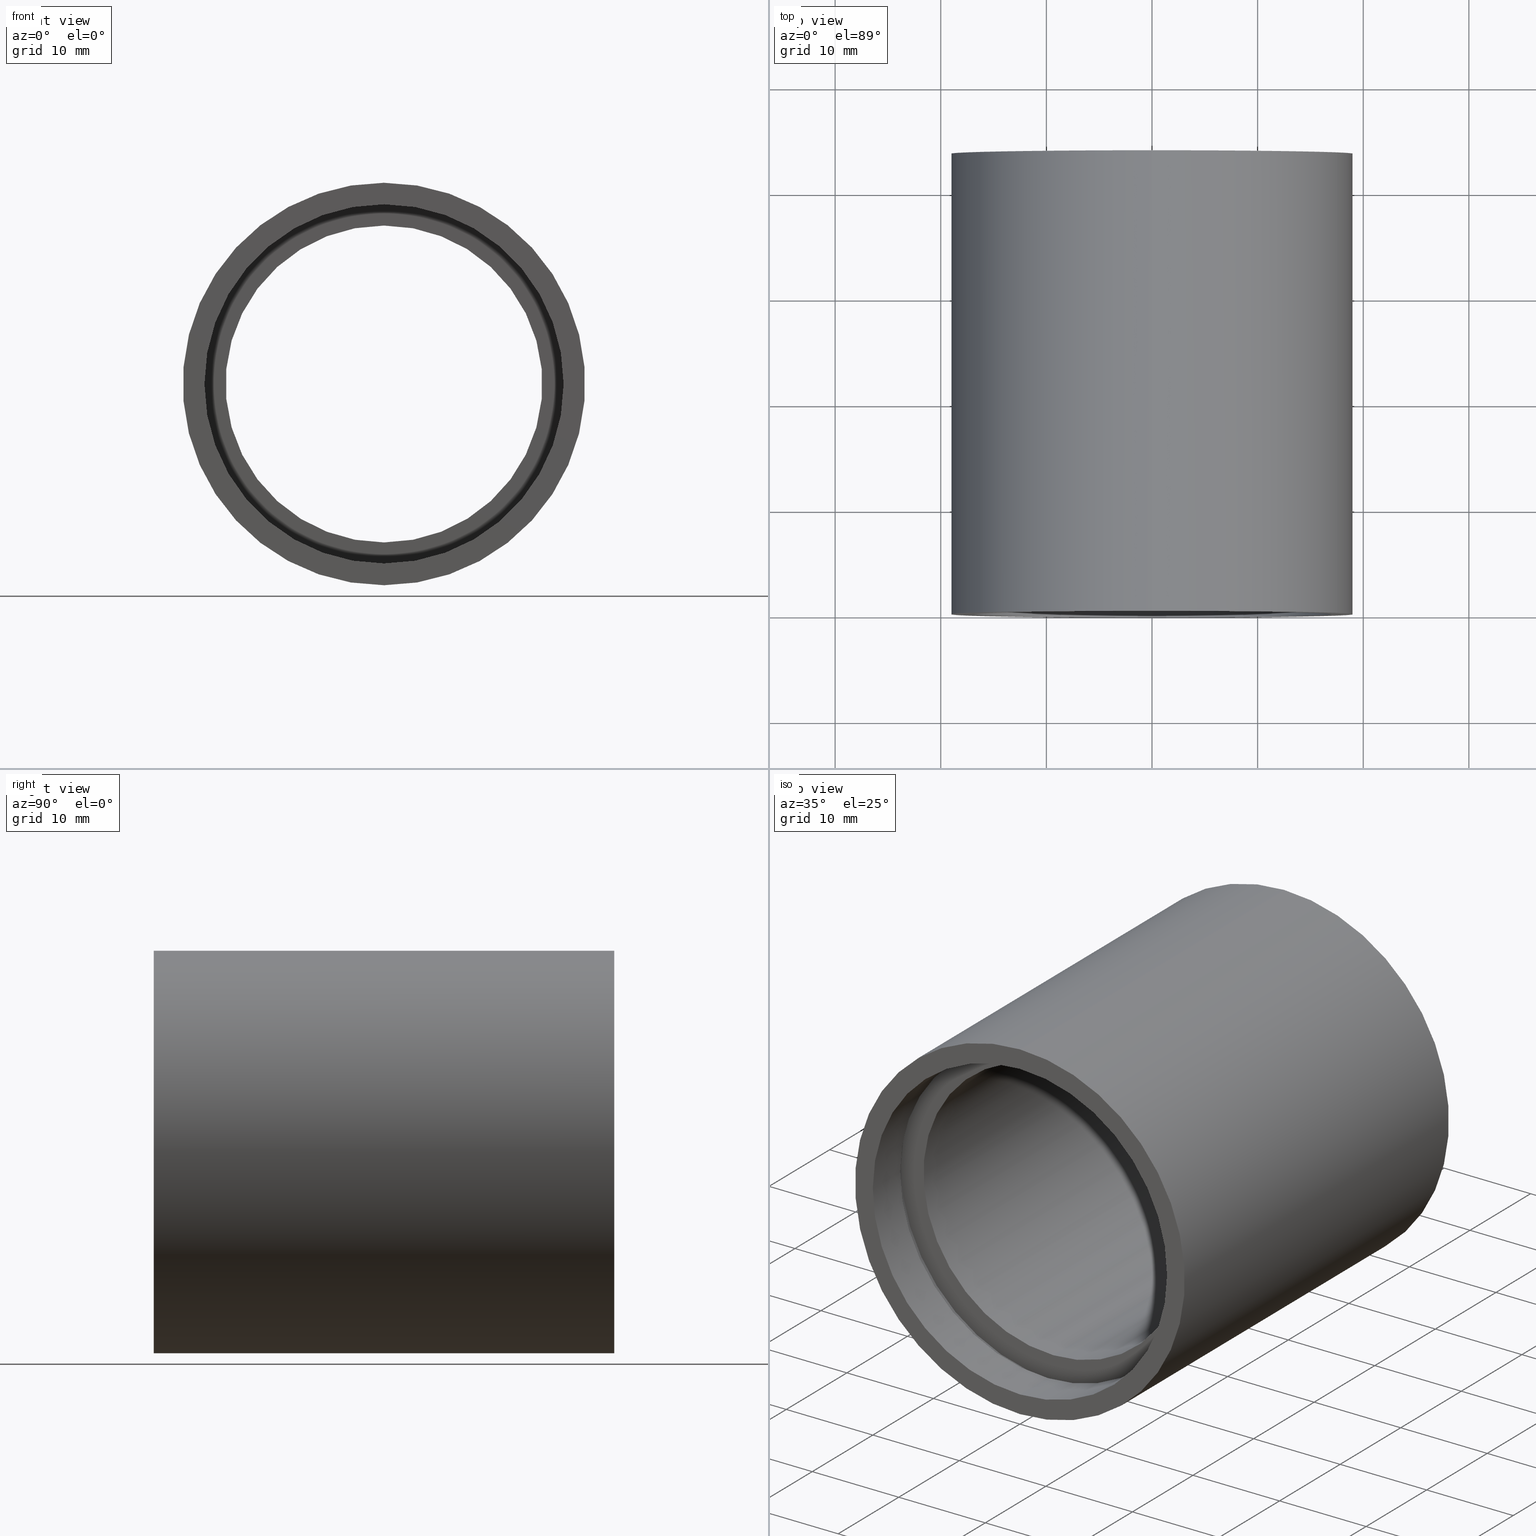
[diagram: canonical four-view strip — front | top / right | iso, engineering-drawing reading convention]
A machine part, canonical four-view strip (front | top / right | iso — engineering-drawing reading convention). The complete STEP part file that produces these views, byte-faithful:
ISO-10303-21;
HEADER;
FILE_DESCRIPTION (( 'STEP AP214' ),
    '1' );
FILE_NAME ('503041.STEP',
    '2019-09-06T03:08:09',
    ( '' ),
    ( '' ),
    'SwSTEP 2.0',
    'SolidWorks 2016',
    '' );
FILE_SCHEMA (( 'AUTOMOTIVE_DESIGN' ));
ENDSEC;

DATA;
#1 = STYLED_ITEM ( 'NONE', ( #238 ), #487 ) ;
#2 = DIRECTION ( 'NONE',  ( -0.0000000000000000000, 1.000000000000000000, -0.0000000000000000000 ) ) ;
#3 = DIRECTION ( 'NONE',  ( -0.0000000000000000000, 1.000000000000000000, -0.0000000000000000000 ) ) ;
#4 = DIRECTION ( 'NONE',  ( 0.0000000000000000000, 0.0000000000000000000, 1.000000000000000000 ) ) ;
#5 = VERTEX_POINT ( 'NONE', #240 ) ;
#6 = DIRECTION ( 'NONE',  ( -0.0000000000000000000, 1.000000000000000000, -0.0000000000000000000 ) ) ;
#7 = CYLINDRICAL_SURFACE ( 'NONE', #385, 17.00000000000002100 ) ;
#8 = ORIENTED_EDGE ( 'NONE', *, *, #362, .F. ) ;
#9 =( LENGTH_UNIT ( ) NAMED_UNIT ( * ) SI_UNIT ( .MILLI., .METRE. ) );
#10 = FILL_AREA_STYLE ('',( #255 ) ) ;
#11 = AXIS2_PLACEMENT_3D ( 'NONE', #63, #13, #381 ) ;
#12 = CARTESIAN_POINT ( 'NONE',  ( 0.0000000000000000000, 43.59999999999998700, 17.00000000000002100 ) ) ;
#13 = DIRECTION ( 'NONE',  ( -0.0000000000000000000, 1.000000000000000000, -0.0000000000000000000 ) ) ;
#14 = ORIENTED_EDGE ( 'NONE', *, *, #227, .T. ) ;
#15 = CARTESIAN_POINT ( 'NONE',  ( 0.0000000000000000000, 161.3761669434274500, 17.00000000000002100 ) ) ;
#16 = PRODUCT_DEFINITION_CONTEXT ( 'detailed design', #198, 'design' ) ;
#17 = DIRECTION ( 'NONE',  ( -0.0000000000000000000, 1.000000000000000000, -0.0000000000000000000 ) ) ;
#18 = EDGE_CURVE ( 'NONE', #469, #5, #409, .T. ) ;
#19 = DIRECTION ( 'NONE',  ( -0.0000000000000000000, 1.000000000000000000, -0.0000000000000000000 ) ) ;
#20 = VECTOR ( 'NONE', #483, 1000.000000000000000 ) ;
#21 = VERTEX_POINT ( 'NONE', #46 ) ;
#22 = CIRCLE ( 'NONE', #366, 19.05000000000002200 ) ;
#23 = ORIENTED_EDGE ( 'NONE', *, *, #191, .T. ) ;
#24 = CARTESIAN_POINT ( 'NONE',  ( 0.0000000000000000000, 39.09999999999998000, 0.0000000000000000000 ) ) ;
#25 = PRESENTATION_LAYER_ASSIGNMENT (  '', '', ( #1 ) ) ;
#26 = CARTESIAN_POINT ( 'NONE',  ( 0.0000000000000000000, 4.499999999999976000, 0.0000000000000000000 ) ) ;
#27 = DIRECTION ( 'NONE',  ( -0.0000000000000000000, 1.000000000000000000, -0.0000000000000000000 ) ) ;
#28 = CYLINDRICAL_SURFACE ( 'NONE', #456, 17.00000000000002100 ) ;
#29 = ORIENTED_EDGE ( 'NONE', *, *, #378, .T. ) ;
#30 = DIRECTION ( 'NONE',  ( -0.0000000000000000000, 1.000000000000000000, -0.0000000000000000000 ) ) ;
#31 = MECHANICAL_DESIGN_GEOMETRIC_PRESENTATION_REPRESENTATION (  '', ( #108 ), #75 ) ;
#32 = CARTESIAN_POINT ( 'NONE',  ( 1.836970198721032000E-015, 161.3761669434274500, -15.00000000000001800 ) ) ;
#33 = AXIS2_PLACEMENT_3D ( 'NONE', #328, #3, #98 ) ;
#34 = ADVANCED_FACE ( 'NONE', ( #154 ), #188, .F. ) ;
#35 = EDGE_CURVE ( 'NONE', #112, #608, #37, .T. ) ;
#36 = CARTESIAN_POINT ( 'NONE',  ( 0.0000000000000000000, 161.3761669434274500, 17.60000000000001600 ) ) ;
#37 = CIRCLE ( 'NONE', #184, 15.00000000000001800 ) ;
#38 = VERTEX_POINT ( 'NONE', #12 ) ;
#39 = FACE_OUTER_BOUND ( 'NONE', #350, .T. ) ;
#40 = FACE_OUTER_BOUND ( 'NONE', #287, .T. ) ;
#41 = DIRECTION ( 'NONE',  ( -0.0000000000000000000, 1.000000000000000000, -0.0000000000000000000 ) ) ;
#42 = FILL_AREA_STYLE_COLOUR ( '', #47 ) ;
#43 = ADVANCED_BREP_SHAPE_REPRESENTATION ( '503041', ( #487, #265 ), #232 ) ;
#44 = EDGE_CURVE ( 'NONE', #192, #230, #444, .T. ) ;
#45 = CARTESIAN_POINT ( 'NONE',  ( 0.0000000000000000000, 43.59999999999998700, 0.0000000000000000000 ) ) ;
#46 = CARTESIAN_POINT ( 'NONE',  ( 0.0000000000000000000, 39.09999999999998000, 17.00000000000002100 ) ) ;
#47 = COLOUR_RGB ( '',1.000000000000000000, 1.000000000000000000, 1.000000000000000000 ) ;
#48 = VERTEX_POINT ( 'NONE', #580 ) ;
#49 = MECHANICAL_DESIGN_GEOMETRIC_PRESENTATION_REPRESENTATION (  '', ( #341 ), #424 ) ;
#50 = DIRECTION ( 'NONE',  ( -0.0000000000000000000, 1.000000000000000000, -0.0000000000000000000 ) ) ;
#51 = EDGE_CURVE ( 'NONE', #321, #300, #146, .T. ) ;
#52 = DIRECTION ( 'NONE',  ( 0.0000000000000000000, 0.0000000000000000000, 1.000000000000000000 ) ) ;
#53 = EDGE_LOOP ( 'NONE', ( #457, #426 ) ) ;
#54 = FACE_BOUND ( 'NONE', #510, .T. ) ;
#55 = ORIENTED_EDGE ( 'NONE', *, *, #499, .T. ) ;
#56 = CIRCLE ( 'NONE', #130, 19.05000000000002200 ) ;
#57 = DIRECTION ( 'NONE',  ( -0.0000000000000000000, 1.000000000000000000, -0.0000000000000000000 ) ) ;
#58 = CARTESIAN_POINT ( 'NONE',  ( 0.0000000000000000000, 38.09999999999998000, 15.00000000000001800 ) ) ;
#59 = SURFACE_SIDE_STYLE ('',( #492 ) ) ;
#60 = PRODUCT_DEFINITION_FORMATION_WITH_SPECIFIED_SOURCE ( '�κ�', '', #199, .NOT_KNOWN. ) ;
#61 = SURFACE_STYLE_USAGE ( .BOTH. , #440 ) ;
#62 =( NAMED_UNIT ( * ) PLANE_ANGLE_UNIT ( ) SI_UNIT ( $, .RADIAN. ) );
#63 = CARTESIAN_POINT ( 'NONE',  ( 0.0000000000000000000, 38.09999999999998000, 0.0000000000000000000 ) ) ;
#64 = DIRECTION ( 'NONE',  ( -0.0000000000000000000, 1.000000000000000000, -0.0000000000000000000 ) ) ;
#65 = AXIS2_PLACEMENT_3D ( 'NONE', #306, #349, #540 ) ;
#66 = EDGE_CURVE ( 'NONE', #543, #117, #111, .T. ) ;
#67 = EDGE_LOOP ( 'NONE', ( #243, #126 ) ) ;
#68 = FACE_BOUND ( 'NONE', #557, .T. ) ;
#69 = ORIENTED_EDGE ( 'NONE', *, *, #191, .F. ) ;
#70 = CARTESIAN_POINT ( 'NONE',  ( 0.0000000000000000000, 38.09999999999998000, 17.60000000000001600 ) ) ;
#71 = CARTESIAN_POINT ( 'NONE',  ( 15.00000000000001800, 38.09999999999998000, 0.0000000000000000000 ) ) ;
#72 = ORIENTED_EDGE ( 'NONE', *, *, #284, .T. ) ;
#73 = FACE_OUTER_BOUND ( 'NONE', #410, .T. ) ;
#74 = SURFACE_SIDE_STYLE ('',( #411 ) ) ;
#75 =( GEOMETRIC_REPRESENTATION_CONTEXT ( 3 ) GLOBAL_UNCERTAINTY_ASSIGNED_CONTEXT ( ( #497 ) ) GLOBAL_UNIT_ASSIGNED_CONTEXT ( ( #115, #299, #498 ) ) REPRESENTATION_CONTEXT ( 'NONE', 'WORKASPACE' ) );
#76 = FACE_OUTER_BOUND ( 'NONE', #420, .T. ) ;
#77 = UNCERTAINTY_MEASURE_WITH_UNIT (LENGTH_MEASURE( 1.000000000000000100E-005 ), #9, 'distance_accuracy_value', 'NONE');
#78 = SURFACE_SIDE_STYLE ('',( #595 ) ) ;
#79 = CARTESIAN_POINT ( 'NONE',  ( 2.332952152375710400E-015, -2.775557561562891400E-014, -19.05000000000002200 ) ) ;
#80 = FILL_AREA_STYLE ('',( #264 ) ) ;
#81 = ADVANCED_FACE ( 'NONE', ( #573, #159 ), #289, .F. ) ;
#82 = EDGE_LOOP ( 'NONE', ( #83, #583, #237, #105 ) ) ;
#83 = ORIENTED_EDGE ( 'NONE', *, *, #216, .T. ) ;
#84 = EDGE_CURVE ( 'NONE', #412, #472, #242, .T. ) ;
#85 = ADVANCED_FACE ( 'NONE', ( #375, #604 ), #205, .F. ) ;
#86 = CARTESIAN_POINT ( 'NONE',  ( 0.0000000000000000000, 4.499999999999976000, 0.0000000000000000000 ) ) ;
#87 = DIRECTION ( 'NONE',  ( 0.0000000000000000000, 0.0000000000000000000, 1.000000000000000000 ) ) ;
#88 = DIRECTION ( 'NONE',  ( 0.0000000000000000000, 0.0000000000000000000, 1.000000000000000000 ) ) ;
#89 =( GEOMETRIC_REPRESENTATION_CONTEXT ( 3 ) GLOBAL_UNCERTAINTY_ASSIGNED_CONTEXT ( ( #348 ) ) GLOBAL_UNIT_ASSIGNED_CONTEXT ( ( #587, #256, #207 ) ) REPRESENTATION_CONTEXT ( 'NONE', 'WORKASPACE' ) );
#90 = ORIENTED_EDGE ( 'NONE', *, *, #210, .T. ) ;
#91 = ORIENTED_EDGE ( 'NONE', *, *, #131, .F. ) ;
#92 = LINE ( 'NONE', #422, #310 ) ;
#93 = CARTESIAN_POINT ( 'NONE',  ( 0.0000000000000000000, 5.499999999999976900, 0.0000000000000000000 ) ) ;
#94 = AXIS2_PLACEMENT_3D ( 'NONE', #124, #30, #121 ) ;
#95 = DIRECTION ( 'NONE',  ( 0.0000000000000000000, 0.0000000000000000000, 1.000000000000000000 ) ) ;
#96 = FACE_OUTER_BOUND ( 'NONE', #267, .T. ) ;
#97 = ORIENTED_EDGE ( 'NONE', *, *, #273, .T. ) ;
#98 = DIRECTION ( 'NONE',  ( 0.0000000000000000000, 0.0000000000000000000, 1.000000000000000000 ) ) ;
#99 = PRODUCT_RELATED_PRODUCT_CATEGORY ( 'part', '', ( #199 ) ) ;
#100 = FACE_OUTER_BOUND ( 'NONE', #135, .T. ) ;
#101 = EDGE_CURVE ( 'NONE', #404, #182, #258, .T. ) ;
#102 = SURFACE_SIDE_STYLE ('',( #323 ) ) ;
#103 = CARTESIAN_POINT ( 'NONE',  ( 0.0000000000000000000, 0.0000000000000000000, 0.0000000000000000000 ) ) ;
#104 = DIRECTION ( 'NONE',  ( 0.0000000000000000000, 0.0000000000000000000, 1.000000000000000000 ) ) ;
#105 = ORIENTED_EDGE ( 'NONE', *, *, #505, .F. ) ;
#106 = VECTOR ( 'NONE', #298, 1000.000000000000000 ) ;
#107 = ORIENTED_EDGE ( 'NONE', *, *, #505, .T. ) ;
#108 = STYLED_ITEM ( 'NONE', ( #392 ), #128 ) ;
#109 = SURFACE_SIDE_STYLE ('',( #551 ) ) ;
#110 = CARTESIAN_POINT ( 'NONE',  ( 2.155378366499344400E-015, 5.499999999999976900, -17.60000000000002300 ) ) ;
#111 = CIRCLE ( 'NONE', #566, 17.60000000000001600 ) ;
#112 = VERTEX_POINT ( 'NONE', #293 ) ;
#113 = DIRECTION ( 'NONE',  ( 0.0000000000000000000, 0.0000000000000000000, 1.000000000000000000 ) ) ;
#114 = LINE ( 'NONE', #520, #177 ) ;
#115 =( LENGTH_UNIT ( ) NAMED_UNIT ( * ) SI_UNIT ( .MILLI., .METRE. ) );
#116 = EDGE_CURVE ( 'NONE', #469, #608, #143, .T. ) ;
#117 = VERTEX_POINT ( 'NONE', #249 ) ;
#118 = DIRECTION ( 'NONE',  ( 0.0000000000000000000, -1.000000000000000000, 0.0000000000000000000 ) ) ;
#119 = PRESENTATION_LAYER_ASSIGNMENT (  '', '', ( #546 ) ) ;
#120 = UNCERTAINTY_MEASURE_WITH_UNIT (LENGTH_MEASURE( 1.000000000000000100E-005 ), #226, 'distance_accuracy_value', 'NONE');
#121 = DIRECTION ( 'NONE',  ( 0.0000000000000000000, 0.0000000000000000000, 1.000000000000000000 ) ) ;
#122 = PRESENTATION_STYLE_ASSIGNMENT (( #61 ) ) ;
#123 = COLOUR_RGB ( '',1.000000000000000000, 1.000000000000000000, 1.000000000000000000 ) ;
#124 = CARTESIAN_POINT ( 'NONE',  ( 0.0000000000000000000, -2.775557561562891400E-014, 0.0000000000000000000 ) ) ;
#125 = AXIS2_PLACEMENT_3D ( 'NONE', #508, #222, #364 ) ;
#126 = ORIENTED_EDGE ( 'NONE', *, *, #227, .F. ) ;
#127 = FACE_BOUND ( 'NONE', #172, .T. ) ;
#128 = ADVANCED_FACE ( 'NONE', ( #515 ), #511, .F. ) ;
#129 = CARTESIAN_POINT ( 'NONE',  ( 2.081899558550503000E-015, 4.499999999999976000, -17.00000000000002100 ) ) ;
#130 = AXIS2_PLACEMENT_3D ( 'NONE', #479, #194, #52 ) ;
#131 = EDGE_CURVE ( 'NONE', #300, #192, #359, .T. ) ;
#132 = DIRECTION ( 'NONE',  ( 0.0000000000000000000, 0.0000000000000000000, 1.000000000000000000 ) ) ;
#133 = DIRECTION ( 'NONE',  ( 0.0000000000000000000, 0.0000000000000000000, 1.000000000000000000 ) ) ;
#134 = ORIENTED_EDGE ( 'NONE', *, *, #245, .T. ) ;
#135 = EDGE_LOOP ( 'NONE', ( #451, #55 ) ) ;
#136 = CARTESIAN_POINT ( 'NONE',  ( 0.0000000000000000000, 161.3761669434274500, 0.0000000000000000000 ) ) ;
#137 = COLOUR_RGB ( '',1.000000000000000000, 1.000000000000000000, 1.000000000000000000 ) ;
#138 =( NAMED_UNIT ( * ) SI_UNIT ( $, .STERADIAN. ) SOLID_ANGLE_UNIT ( ) );
#139 = EDGE_CURVE ( 'NONE', #5, #469, #530, .T. ) ;
#140 = CARTESIAN_POINT ( 'NONE',  ( 2.332952152375710400E-015, 161.3761669434274500, -19.05000000000002200 ) ) ;
#141 = AXIS2_PLACEMENT_3D ( 'NONE', #569, #320, #417 ) ;
#142 = ORIENTED_EDGE ( 'NONE', *, *, #84, .F. ) ;
#143 = LINE ( 'NONE', #481, #20 ) ;
#144 = EDGE_CURVE ( 'NONE', #476, #48, #202, .T. ) ;
#145 = EDGE_CURVE ( 'NONE', #301, #556, #22, .T. ) ;
#146 = CIRCLE ( 'NONE', #305, 17.00000000000002100 ) ;
#147 = VERTEX_POINT ( 'NONE', #110 ) ;
#148 = CARTESIAN_POINT ( 'NONE',  ( 0.0000000000000000000, 43.59999999999998700, 0.0000000000000000000 ) ) ;
#149 = ORIENTED_EDGE ( 'NONE', *, *, #51, .F. ) ;
#150 = DIRECTION ( 'NONE',  ( 0.0000000000000000000, 0.0000000000000000000, 1.000000000000000000 ) ) ;
#151 = SURFACE_STYLE_USAGE ( .BOTH. , #109 ) ;
#152 = PRODUCT_CONTEXT ( 'NONE', #338, 'mechanical' ) ;
#153 = CARTESIAN_POINT ( 'NONE',  ( 0.0000000000000000000, 39.09999999999998000, 0.0000000000000000000 ) ) ;
#154 = FACE_OUTER_BOUND ( 'NONE', #447, .T. ) ;
#155 = ORIENTED_EDGE ( 'NONE', *, *, #101, .F. ) ;
#156 = AXIS2_PLACEMENT_3D ( 'NONE', #209, #19, #262 ) ;
#157 = CARTESIAN_POINT ( 'NONE',  ( 0.0000000000000000000, 39.09999999999998000, 0.0000000000000000000 ) ) ;
#158 = EDGE_CURVE ( 'NONE', #200, #147, #288, .T. ) ;
#159 = FACE_BOUND ( 'NONE', #568, .T. ) ;
#160 = ORIENTED_EDGE ( 'NONE', *, *, #116, .F. ) ;
#161 = LINE ( 'NONE', #545, #624 ) ;
#162 = FACE_BOUND ( 'NONE', #296, .T. ) ;
#163 = SURFACE_STYLE_USAGE ( .BOTH. , #78 ) ;
#164 = EDGE_CURVE ( 'NONE', #21, #38, #161, .T. ) ;
#165 = CIRCLE ( 'NONE', #544, 17.60000000000002300 ) ;
#166 = PLANE ( 'NONE',  #125 ) ;
#167 = MECHANICAL_DESIGN_GEOMETRIC_PRESENTATION_REPRESENTATION (  '', ( #546 ), #593 ) ;
#168 = EDGE_CURVE ( 'NONE', #21, #412, #577, .T. ) ;
#169 =( NAMED_UNIT ( * ) PLANE_ANGLE_UNIT ( ) SI_UNIT ( $, .RADIAN. ) );
#170 = DIRECTION ( 'NONE',  ( -0.0000000000000000000, 1.000000000000000000, -0.0000000000000000000 ) ) ;
#171 = ADVANCED_FACE ( 'NONE', ( #54, #219 ), #442, .F. ) ;
#172 = EDGE_LOOP ( 'NONE', ( #501, #203 ) ) ;
#173 = SURFACE_STYLE_USAGE ( .BOTH. , #371 ) ;
#174 = EDGE_CURVE ( 'NONE', #412, #21, #330, .T. ) ;
#175 = ORIENTED_EDGE ( 'NONE', *, *, #131, .T. ) ;
#176 = FACE_OUTER_BOUND ( 'NONE', #382, .T. ) ;
#177 = VECTOR ( 'NONE', #186, 1000.000000000000000 ) ;
#178 = DIRECTION ( 'NONE',  ( 0.0000000000000000000, 0.0000000000000000000, 1.000000000000000000 ) ) ;
#179 = CARTESIAN_POINT ( 'NONE',  ( 2.081899558550503000E-015, 39.09999999999998000, -17.00000000000002100 ) ) ;
#180 = DIRECTION ( 'NONE',  ( -0.0000000000000000000, 1.000000000000000000, -0.0000000000000000000 ) ) ;
#181 = VECTOR ( 'NONE', #618, 1000.000000000000000 ) ;
#182 = VERTEX_POINT ( 'NONE', #70 ) ;
#183 = DIRECTION ( 'NONE',  ( -0.0000000000000000000, 1.000000000000000000, -0.0000000000000000000 ) ) ;
#184 = AXIS2_PLACEMENT_3D ( 'NONE', #434, #64, #104 ) ;
#185 =( NAMED_UNIT ( * ) PLANE_ANGLE_UNIT ( ) SI_UNIT ( $, .RADIAN. ) );
#186 = DIRECTION ( 'NONE',  ( -0.0000000000000000000, 1.000000000000000000, -0.0000000000000000000 ) ) ;
#187 = AXIS2_PLACEMENT_3D ( 'NONE', #136, #279, #278 ) ;
#188 = CYLINDRICAL_SURFACE ( 'NONE', #239, 15.00000000000001800 ) ;
#189 = ORIENTED_EDGE ( 'NONE', *, *, #144, .F. ) ;
#190 = VECTOR ( 'NONE', #513, 1000.000000000000000 ) ;
#191 = EDGE_CURVE ( 'NONE', #117, #543, #368, .T. ) ;
#192 = VERTEX_POINT ( 'NONE', #303 ) ;
#193 = CYLINDRICAL_SURFACE ( 'NONE', #372, 17.00000000000002100 ) ;
#194 = DIRECTION ( 'NONE',  ( -0.0000000000000000000, 1.000000000000000000, -0.0000000000000000000 ) ) ;
#195 = DIRECTION ( 'NONE',  ( 0.0000000000000000000, 0.0000000000000000000, 1.000000000000000000 ) ) ;
#196 = DIRECTION ( 'NONE',  ( 0.0000000000000000000, -1.000000000000000000, 0.0000000000000000000 ) ) ;
#197 = FILL_AREA_STYLE_COLOUR ( '', #213 ) ;
#198 = APPLICATION_CONTEXT ( 'automotive_design' ) ;
#199 = PRODUCT ( '503041', '503041', '', ( #152 ) ) ;
#200 = VERTEX_POINT ( 'NONE', #446 ) ;
#201 = DIRECTION ( 'NONE',  ( 0.0000000000000000000, 0.0000000000000000000, 1.000000000000000000 ) ) ;
#202 = CIRCLE ( 'NONE', #370, 17.60000000000002300 ) ;
#203 = ORIENTED_EDGE ( 'NONE', *, *, #174, .T. ) ;
#204 = FACE_OUTER_BOUND ( 'NONE', #82, .T. ) ;
#205 = PLANE ( 'NONE',  #601 ) ;
#206 = AXIS2_PLACEMENT_3D ( 'NONE', #217, #396, #400 ) ;
#207 =( NAMED_UNIT ( * ) SI_UNIT ( $, .STERADIAN. ) SOLID_ANGLE_UNIT ( ) );
#208 =( NAMED_UNIT ( * ) PLANE_ANGLE_UNIT ( ) SI_UNIT ( $, .RADIAN. ) );
#209 = CARTESIAN_POINT ( 'NONE',  ( 0.0000000000000000000, 39.09999999999998000, 0.0000000000000000000 ) ) ;
#210 = EDGE_CURVE ( 'NONE', #147, #200, #251, .T. ) ;
#211 = PRODUCT_DEFINITION_SHAPE ( 'NONE', 'NONE',  #619 ) ;
#212 = DIRECTION ( 'NONE',  ( 0.0000000000000000000, 0.0000000000000000000, 1.000000000000000000 ) ) ;
#213 = COLOUR_RGB ( '',1.000000000000000000, 1.000000000000000000, 1.000000000000000000 ) ;
#214 = ORIENTED_EDGE ( 'NONE', *, *, #380, .F. ) ;
#215 = VECTOR ( 'NONE', #405, 1000.000000000000000 ) ;
#216 = EDGE_CURVE ( 'NONE', #556, #301, #302, .T. ) ;
#217 = CARTESIAN_POINT ( 'NONE',  ( 0.0000000000000000000, 5.499999999999976900, 0.0000000000000000000 ) ) ;
#218 = ORIENTED_EDGE ( 'NONE', *, *, #458, .T. ) ;
#219 = FACE_OUTER_BOUND ( 'NONE', #367, .T. ) ;
#220 = ORIENTED_EDGE ( 'NONE', *, *, #362, .T. ) ;
#221 = COLOUR_RGB ( '',1.000000000000000000, 1.000000000000000000, 1.000000000000000000 ) ;
#222 = DIRECTION ( 'NONE',  ( -0.0000000000000000000, 1.000000000000000000, 0.0000000000000000000 ) ) ;
#223 = ADVANCED_FACE ( 'NONE', ( #470 ), #495, .F. ) ;
#224 =( NAMED_UNIT ( * ) SI_UNIT ( $, .STERADIAN. ) SOLID_ANGLE_UNIT ( ) );
#225 = ADVANCED_FACE ( 'NONE', ( #73, #68 ), #166, .F. ) ;
#226 =( LENGTH_UNIT ( ) NAMED_UNIT ( * ) SI_UNIT ( .MILLI., .METRE. ) );
#227 = EDGE_CURVE ( 'NONE', #230, #192, #584, .T. ) ;
#228 = ORIENTED_EDGE ( 'NONE', *, *, #51, .T. ) ;
#229 = CIRCLE ( 'NONE', #358, 17.00000000000002100 ) ;
#230 = VERTEX_POINT ( 'NONE', #129 ) ;
#231 = CARTESIAN_POINT ( 'NONE',  ( 2.332952152375710400E-015, 43.59999999999998700, -19.05000000000002200 ) ) ;
#232 =( GEOMETRIC_REPRESENTATION_CONTEXT ( 3 ) GLOBAL_UNCERTAINTY_ASSIGNED_CONTEXT ( ( #565 ) ) GLOBAL_UNIT_ASSIGNED_CONTEXT ( ( #342, #62, #254 ) ) REPRESENTATION_CONTEXT ( 'NONE', 'WORKASPACE' ) );
#233 = EDGE_CURVE ( 'NONE', #5, #112, #558, .T. ) ;
#234 = CARTESIAN_POINT ( 'NONE',  ( 0.0000000000000000000, 5.499999999999976900, 15.00000000000001800 ) ) ;
#235 = ADVANCED_FACE ( 'NONE', ( #176 ), #7, .F. ) ;
#236 = CARTESIAN_POINT ( 'NONE',  ( 0.0000000000000000000, 161.3761669434274500, 0.0000000000000000000 ) ) ;
#237 = ORIENTED_EDGE ( 'NONE', *, *, #612, .F. ) ;
#238 = PRESENTATION_STYLE_ASSIGNMENT (( #532 ) ) ;
#239 = AXIS2_PLACEMENT_3D ( 'NONE', #373, #183, #195 ) ;
#240 = CARTESIAN_POINT ( 'NONE',  ( 1.836970198721032000E-015, 5.499999999999976900, -15.00000000000001800 ) ) ;
#241 = AXIS2_PLACEMENT_3D ( 'NONE', #379, #6, #95 ) ;
#242 = LINE ( 'NONE', #290, #403 ) ;
#243 = ORIENTED_EDGE ( 'NONE', *, *, #44, .F. ) ;
#244 = CARTESIAN_POINT ( 'NONE',  ( 17.00000000000002100, 43.59999999999998700, 0.0000000000000000000 ) ) ;
#245 = EDGE_CURVE ( 'NONE', #182, #543, #609, .T. ) ;
#246 = DIRECTION ( 'NONE',  ( -0.0000000000000000000, 1.000000000000000000, -0.0000000000000000000 ) ) ;
#247 = DIRECTION ( 'NONE',  ( -0.0000000000000000000, 1.000000000000000000, -0.0000000000000000000 ) ) ;
#248 = DIRECTION ( 'NONE',  ( 0.0000000000000000000, 0.0000000000000000000, 1.000000000000000000 ) ) ;
#249 = CARTESIAN_POINT ( 'NONE',  ( 2.155378366499343600E-015, 39.09999999999998000, -17.60000000000001600 ) ) ;
#250 = EDGE_LOOP ( 'NONE', ( #149, #72, #14, #91 ) ) ;
#251 = CIRCLE ( 'NONE', #541, 17.60000000000002300 ) ;
#252 = DIRECTION ( 'NONE',  ( -0.0000000000000000000, 1.000000000000000000, -0.0000000000000000000 ) ) ;
#253 = PRESENTATION_LAYER_ASSIGNMENT (  '', '', ( #269 ) ) ;
#254 =( NAMED_UNIT ( * ) SI_UNIT ( $, .STERADIAN. ) SOLID_ANGLE_UNIT ( ) );
#255 = FILL_AREA_STYLE_COLOUR ( '', #391 ) ;
#256 =( NAMED_UNIT ( * ) PLANE_ANGLE_UNIT ( ) SI_UNIT ( $, .RADIAN. ) );
#257 = CARTESIAN_POINT ( 'NONE',  ( 17.00000000000002100, -1.527582111260147300E-014, 0.0000000000000000000 ) ) ;
#258 = CIRCLE ( 'NONE', #11, 17.60000000000001600 ) ;
#259 = PRESENTATION_STYLE_ASSIGNMENT (( #620 ) ) ;
#260 = VERTEX_POINT ( 'NONE', #231 ) ;
#261 = LINE ( 'NONE', #353, #502 ) ;
#262 = DIRECTION ( 'NONE',  ( 0.0000000000000000000, 0.0000000000000000000, 1.000000000000000000 ) ) ;
#263 = STYLED_ITEM ( 'NONE', ( #429 ), #235 ) ;
#264 = FILL_AREA_STYLE_COLOUR ( '', #616 ) ;
#265 = AXIS2_PLACEMENT_3D ( 'NONE', #103, #201, #439 ) ;
#266 = ORIENTED_EDGE ( 'NONE', *, *, #574, .T. ) ;
#267 = EDGE_LOOP ( 'NONE', ( #189, #97, #90, #538 ) ) ;
#268 = DIRECTION ( 'NONE',  ( -0.0000000000000000000, 1.000000000000000000, -0.0000000000000000000 ) ) ;
#269 = STYLED_ITEM ( 'NONE', ( #384 ), #43 ) ;
#270 = EDGE_CURVE ( 'NONE', #182, #404, #377, .T. ) ;
#271 =( NAMED_UNIT ( * ) PLANE_ANGLE_UNIT ( ) SI_UNIT ( $, .RADIAN. ) );
#272 = DIRECTION ( 'NONE',  ( 0.0000000000000000000, 0.0000000000000000000, 1.000000000000000000 ) ) ;
#273 = EDGE_CURVE ( 'NONE', #476, #147, #261, .T. ) ;
#274 =( GEOMETRIC_REPRESENTATION_CONTEXT ( 3 ) GLOBAL_UNCERTAINTY_ASSIGNED_CONTEXT ( ( #77 ) ) GLOBAL_UNIT_ASSIGNED_CONTEXT ( ( #9, #208, #490 ) ) REPRESENTATION_CONTEXT ( 'NONE', 'WORKASPACE' ) );
#275 = ORIENTED_EDGE ( 'NONE', *, *, #164, .F. ) ;
#276 = COLOUR_RGB ( '',1.000000000000000000, 1.000000000000000000, 1.000000000000000000 ) ;
#277 = VERTEX_POINT ( 'NONE', #611 ) ;
#278 = DIRECTION ( 'NONE',  ( 0.0000000000000000000, 0.0000000000000000000, 1.000000000000000000 ) ) ;
#279 = DIRECTION ( 'NONE',  ( -0.0000000000000000000, 1.000000000000000000, -0.0000000000000000000 ) ) ;
#280 = CARTESIAN_POINT ( 'NONE',  ( 2.155378366499343600E-015, 38.09999999999998000, -17.60000000000001600 ) ) ;
#281 =( GEOMETRIC_REPRESENTATION_CONTEXT ( 3 ) GLOBAL_UNCERTAINTY_ASSIGNED_CONTEXT ( ( #606 ) ) GLOBAL_UNIT_ASSIGNED_CONTEXT ( ( #475, #185, #331 ) ) REPRESENTATION_CONTEXT ( 'NONE', 'WORKASPACE' ) );
#282 =( NAMED_UNIT ( * ) PLANE_ANGLE_UNIT ( ) SI_UNIT ( $, .RADIAN. ) );
#283 = ORIENTED_EDGE ( 'NONE', *, *, #284, .F. ) ;
#284 = EDGE_CURVE ( 'NONE', #321, #230, #462, .T. ) ;
#285 = DIRECTION ( 'NONE',  ( 0.0000000000000000000, -0.0000000000000000000, -1.000000000000000000 ) ) ;
#286 = UNCERTAINTY_MEASURE_WITH_UNIT (LENGTH_MEASURE( 1.000000000000000100E-005 ), #521, 'distance_accuracy_value', 'NONE');
#287 = EDGE_LOOP ( 'NONE', ( #322, #615, #134, #316 ) ) ;
#288 = CIRCLE ( 'NONE', #65, 17.60000000000002300 ) ;
#289 = PLANE ( 'NONE',  #332 ) ;
#290 = CARTESIAN_POINT ( 'NONE',  ( 2.081899558550503000E-015, 161.3761669434274500, -17.00000000000002100 ) ) ;
#291 = APPLICATION_PROTOCOL_DEFINITION ( 'draft international standard', 'automotive_design', 1998, #198 ) ;
#292 = DIRECTION ( 'NONE',  ( 0.0000000000000000000, -1.000000000000000000, 0.0000000000000000000 ) ) ;
#293 = CARTESIAN_POINT ( 'NONE',  ( 1.836970198721032000E-015, 38.09999999999998000, -15.00000000000001800 ) ) ;
#294 = CYLINDRICAL_SURFACE ( 'NONE', #187, 17.60000000000002300 ) ;
#295 = AXIS2_PLACEMENT_3D ( 'NONE', #71, #118, #542 ) ;
#296 = EDGE_LOOP ( 'NONE', ( #214, #585 ) ) ;
#297 = AXIS2_PLACEMENT_3D ( 'NONE', #148, #482, #248 ) ;
#298 = DIRECTION ( 'NONE',  ( -0.0000000000000000000, 1.000000000000000000, -0.0000000000000000000 ) ) ;
#299 =( NAMED_UNIT ( * ) PLANE_ANGLE_UNIT ( ) SI_UNIT ( $, .RADIAN. ) );
#300 = VERTEX_POINT ( 'NONE', #314 ) ;
#301 = VERTEX_POINT ( 'NONE', #79 ) ;
#302 = CIRCLE ( 'NONE', #94, 19.05000000000002200 ) ;
#303 = CARTESIAN_POINT ( 'NONE',  ( 0.0000000000000000000, 4.499999999999976000, 17.00000000000002100 ) ) ;
#304 = ORIENTED_EDGE ( 'NONE', *, *, #168, .F. ) ;
#305 = AXIS2_PLACEMENT_3D ( 'NONE', #588, #387, #335 ) ;
#306 = CARTESIAN_POINT ( 'NONE',  ( 0.0000000000000000000, 5.499999999999976900, 0.0000000000000000000 ) ) ;
#307 = DIRECTION ( 'NONE',  ( 0.0000000000000000000, 0.0000000000000000000, 1.000000000000000000 ) ) ;
#308 = PRESENTATION_LAYER_ASSIGNMENT (  '', '', ( #341 ) ) ;
#309 = ORIENTED_EDGE ( 'NONE', *, *, #35, .T. ) ;
#310 = VECTOR ( 'NONE', #579, 1000.000000000000000 ) ;
#311 = DIRECTION ( 'NONE',  ( 0.0000000000000000000, 0.0000000000000000000, 1.000000000000000000 ) ) ;
#312 =( LENGTH_UNIT ( ) NAMED_UNIT ( * ) SI_UNIT ( .MILLI., .METRE. ) );
#313 = MECHANICAL_DESIGN_GEOMETRIC_PRESENTATION_REPRESENTATION (  '', ( #263 ), #477 ) ;
#314 = CARTESIAN_POINT ( 'NONE',  ( 0.0000000000000000000, -2.775557561562891400E-014, 17.00000000000002100 ) ) ;
#315 = ORIENTED_EDGE ( 'NONE', *, *, #233, .T. ) ;
#316 = ORIENTED_EDGE ( 'NONE', *, *, #66, .T. ) ;
#317 = ADVANCED_FACE ( 'NONE', ( #39, #127 ), #547, .F. ) ;
#318 = DIRECTION ( 'NONE',  ( -0.0000000000000000000, 1.000000000000000000, -0.0000000000000000000 ) ) ;
#319 = CARTESIAN_POINT ( 'NONE',  ( 0.0000000000000000000, 43.59999999999998700, 0.0000000000000000000 ) ) ;
#320 = DIRECTION ( 'NONE',  ( -0.0000000000000000000, 1.000000000000000000, -0.0000000000000000000 ) ) ;
#321 = VERTEX_POINT ( 'NONE', #600 ) ;
#322 = ORIENTED_EDGE ( 'NONE', *, *, #622, .F. ) ;
#323 = SURFACE_STYLE_FILL_AREA ( #423 ) ;
#324 = AXIS2_PLACEMENT_3D ( 'NONE', #157, #395, #212 ) ;
#325 = CARTESIAN_POINT ( 'NONE',  ( 0.0000000000000000000, 161.3761669434274500, 0.0000000000000000000 ) ) ;
#326 = DIRECTION ( 'NONE',  ( -0.0000000000000000000, 1.000000000000000000, -0.0000000000000000000 ) ) ;
#327 = AXIS2_PLACEMENT_3D ( 'NONE', #401, #465, #413 ) ;
#328 = CARTESIAN_POINT ( 'NONE',  ( 0.0000000000000000000, 161.3761669434274500, 0.0000000000000000000 ) ) ;
#329 = EDGE_LOOP ( 'NONE', ( #218, #550 ) ) ;
#330 = CIRCLE ( 'NONE', #156, 17.00000000000002100 ) ;
#331 =( NAMED_UNIT ( * ) SI_UNIT ( $, .STERADIAN. ) SOLID_ANGLE_UNIT ( ) );
#332 = AXIS2_PLACEMENT_3D ( 'NONE', #257, #441, #590 ) ;
#333 = CARTESIAN_POINT ( 'NONE',  ( 0.0000000000000000000, 161.3761669434274500, 0.0000000000000000000 ) ) ;
#334 = CARTESIAN_POINT ( 'NONE',  ( 0.0000000000000000000, 161.3761669434274500, 0.0000000000000000000 ) ) ;
#335 = DIRECTION ( 'NONE',  ( 0.0000000000000000000, 0.0000000000000000000, 1.000000000000000000 ) ) ;
#336 = EDGE_CURVE ( 'NONE', #301, #260, #390, .T. ) ;
#337 = EDGE_LOOP ( 'NONE', ( #623, #315, #309, #160 ) ) ;
#338 = APPLICATION_CONTEXT ( 'automotive_design' ) ;
#339 = ORIENTED_EDGE ( 'NONE', *, *, #139, .T. ) ;
#340 = CIRCLE ( 'NONE', #527, 15.00000000000001800 ) ;
#341 = STYLED_ITEM ( 'NONE', ( #259 ), #365 ) ;
#342 =( LENGTH_UNIT ( ) NAMED_UNIT ( * ) SI_UNIT ( .MILLI., .METRE. ) );
#343 = CARTESIAN_POINT ( 'NONE',  ( 17.00000000000002100, 4.499999999999984000, 0.0000000000000000000 ) ) ;
#344 = DIRECTION ( 'NONE',  ( -0.0000000000000000000, 1.000000000000000000, -0.0000000000000000000 ) ) ;
#345 = AXIS2_PLACEMENT_3D ( 'NONE', #93, #436, #4 ) ;
#346 = ORIENTED_EDGE ( 'NONE', *, *, #245, .F. ) ;
#347 = CARTESIAN_POINT ( 'NONE',  ( 0.0000000000000000000, 161.3761669434274500, 0.0000000000000000000 ) ) ;
#348 = UNCERTAINTY_MEASURE_WITH_UNIT (LENGTH_MEASURE( 1.000000000000000100E-005 ), #587, 'distance_accuracy_value', 'NONE');
#349 = DIRECTION ( 'NONE',  ( -0.0000000000000000000, 1.000000000000000000, -0.0000000000000000000 ) ) ;
#350 = EDGE_LOOP ( 'NONE', ( #450, #69 ) ) ;
#351 = DIRECTION ( 'NONE',  ( -0.0000000000000000000, 1.000000000000000000, -0.0000000000000000000 ) ) ;
#352 = CYLINDRICAL_SURFACE ( 'NONE', #33, 19.05000000000002200 ) ;
#353 = CARTESIAN_POINT ( 'NONE',  ( 2.155378366499344400E-015, 161.3761669434274500, -17.60000000000002300 ) ) ;
#354 = CARTESIAN_POINT ( 'NONE',  ( 0.0000000000000000000, 38.09999999999998000, 0.0000000000000000000 ) ) ;
#355 = PRESENTATION_LAYER_ASSIGNMENT (  '', '', ( #108 ) ) ;
#356 = UNCERTAINTY_MEASURE_WITH_UNIT (LENGTH_MEASURE( 1.000000000000000100E-005 ), #312, 'distance_accuracy_value', 'NONE');
#357 = DIRECTION ( 'NONE',  ( -0.0000000000000000000, 1.000000000000000000, -0.0000000000000000000 ) ) ;
#358 = AXIS2_PLACEMENT_3D ( 'NONE', #319, #41, #133 ) ;
#359 = LINE ( 'NONE', #15, #106 ) ;
#360 = ORIENTED_EDGE ( 'NONE', *, *, #18, .F. ) ;
#361 = VECTOR ( 'NONE', #363, 1000.000000000000000 ) ;
#362 = EDGE_CURVE ( 'NONE', #300, #321, #549, .T. ) ;
#363 = DIRECTION ( 'NONE',  ( -0.0000000000000000000, 1.000000000000000000, -0.0000000000000000000 ) ) ;
#364 = DIRECTION ( 'NONE',  ( 0.0000000000000000000, 0.0000000000000000000, 1.000000000000000000 ) ) ;
#365 = ADVANCED_FACE ( 'NONE', ( #605 ), #28, .F. ) ;
#366 = AXIS2_PLACEMENT_3D ( 'NONE', #597, #344, #592 ) ;
#367 = EDGE_LOOP ( 'NONE', ( #575, #599 ) ) ;
#368 = CIRCLE ( 'NONE', #324, 17.60000000000001600 ) ;
#369 = CYLINDRICAL_SURFACE ( 'NONE', #582, 19.05000000000002200 ) ;
#370 = AXIS2_PLACEMENT_3D ( 'NONE', #503, #17, #500 ) ;
#371 = SURFACE_SIDE_STYLE ('',( #419 ) ) ;
#372 = AXIS2_PLACEMENT_3D ( 'NONE', #325, #374, #88 ) ;
#373 = CARTESIAN_POINT ( 'NONE',  ( 0.0000000000000000000, 161.3761669434274500, 0.0000000000000000000 ) ) ;
#374 = DIRECTION ( 'NONE',  ( -0.0000000000000000000, 1.000000000000000000, -0.0000000000000000000 ) ) ;
#375 = FACE_BOUND ( 'NONE', #67, .T. ) ;
#376 = ORIENTED_EDGE ( 'NONE', *, *, #336, .F. ) ;
#377 = CIRCLE ( 'NONE', #394, 17.60000000000001600 ) ;
#378 = EDGE_CURVE ( 'NONE', #472, #38, #229, .T. ) ;
#379 = CARTESIAN_POINT ( 'NONE',  ( 0.0000000000000000000, 161.3761669434274500, 0.0000000000000000000 ) ) ;
#380 = EDGE_CURVE ( 'NONE', #38, #472, #459, .T. ) ;
#381 = DIRECTION ( 'NONE',  ( 0.0000000000000000000, 0.0000000000000000000, 1.000000000000000000 ) ) ;
#382 = EDGE_LOOP ( 'NONE', ( #383, #536, #29, #275 ) ) ;
#383 = ORIENTED_EDGE ( 'NONE', *, *, #174, .F. ) ;
#384 = PRESENTATION_STYLE_ASSIGNMENT (( #151 ) ) ;
#385 = AXIS2_PLACEMENT_3D ( 'NONE', #408, #170, #311 ) ;
#386 = SURFACE_STYLE_USAGE ( .BOTH. , #59 ) ;
#387 = DIRECTION ( 'NONE',  ( -0.0000000000000000000, 1.000000000000000000, -0.0000000000000000000 ) ) ;
#388 = PRESENTATION_LAYER_ASSIGNMENT (  '', '', ( #435 ) ) ;
#389 = EDGE_LOOP ( 'NONE', ( #283, #8, #175, #578 ) ) ;
#390 = LINE ( 'NONE', #140, #181 ) ;
#391 = COLOUR_RGB ( '',1.000000000000000000, 1.000000000000000000, 1.000000000000000000 ) ;
#392 = PRESENTATION_STYLE_ASSIGNMENT (( #386 ) ) ;
#393 = DIRECTION ( 'NONE',  ( 0.0000000000000000000, -0.0000000000000000000, -1.000000000000000000 ) ) ;
#394 = AXIS2_PLACEMENT_3D ( 'NONE', #354, #357, #449 ) ;
#395 = DIRECTION ( 'NONE',  ( -0.0000000000000000000, 1.000000000000000000, -0.0000000000000000000 ) ) ;
#396 = DIRECTION ( 'NONE',  ( -0.0000000000000000000, 1.000000000000000000, -0.0000000000000000000 ) ) ;
#397 = PRESENTATION_LAYER_ASSIGNMENT (  '', '', ( #534 ) ) ;
#398 = ORIENTED_EDGE ( 'NONE', *, *, #158, .T. ) ;
#399 = ORIENTED_EDGE ( 'NONE', *, *, #158, .F. ) ;
#400 = DIRECTION ( 'NONE',  ( 0.0000000000000000000, 0.0000000000000000000, 1.000000000000000000 ) ) ;
#401 = CARTESIAN_POINT ( 'NONE',  ( 17.60000000000001600, 39.09999999999998000, 0.0000000000000000000 ) ) ;
#402 = AXIS2_PLACEMENT_3D ( 'NONE', #244, #196, #285 ) ;
#403 = VECTOR ( 'NONE', #252, 1000.000000000000000 ) ;
#404 = VERTEX_POINT ( 'NONE', #280 ) ;
#405 = DIRECTION ( 'NONE',  ( -0.0000000000000000000, 1.000000000000000000, -0.0000000000000000000 ) ) ;
#406 = AXIS2_PLACEMENT_3D ( 'NONE', #539, #57, #150 ) ;
#407 = ADVANCED_FACE ( 'NONE', ( #96 ), #294, .F. ) ;
#408 = CARTESIAN_POINT ( 'NONE',  ( 0.0000000000000000000, 161.3761669434274500, 0.0000000000000000000 ) ) ;
#409 = CIRCLE ( 'NONE', #345, 15.00000000000001800 ) ;
#410 = EDGE_LOOP ( 'NONE', ( #399, #598 ) ) ;
#411 = SURFACE_STYLE_FILL_AREA ( #602 ) ;
#412 = VERTEX_POINT ( 'NONE', #179 ) ;
#413 = DIRECTION ( 'NONE',  ( 0.0000000000000000000, 0.0000000000000000000, 1.000000000000000000 ) ) ;
#414 = FILL_AREA_STYLE ('',( #519 ) ) ;
#415 = AXIS2_PLACEMENT_3D ( 'NONE', #45, #473, #132 ) ;
#416 = DIRECTION ( 'NONE',  ( -0.0000000000000000000, 1.000000000000000000, -0.0000000000000000000 ) ) ;
#417 = DIRECTION ( 'NONE',  ( 0.0000000000000000000, 0.0000000000000000000, 1.000000000000000000 ) ) ;
#418 = SURFACE_STYLE_FILL_AREA ( #10 ) ;
#419 = SURFACE_STYLE_FILL_AREA ( #463 ) ;
#420 = EDGE_LOOP ( 'NONE', ( #376, #437, #107, #504 ) ) ;
#421 = MECHANICAL_DESIGN_GEOMETRIC_PRESENTATION_REPRESENTATION (  '', ( #435 ), #454 ) ;
#422 = CARTESIAN_POINT ( 'NONE',  ( 2.155378366499343600E-015, 161.3761669434274500, -17.60000000000001600 ) ) ;
#423 = FILL_AREA_STYLE ('',( #514 ) ) ;
#424 =( GEOMETRIC_REPRESENTATION_CONTEXT ( 3 ) GLOBAL_UNCERTAINTY_ASSIGNED_CONTEXT ( ( #589 ) ) GLOBAL_UNIT_ASSIGNED_CONTEXT ( ( #467, #563, #138 ) ) REPRESENTATION_CONTEXT ( 'NONE', 'WORKASPACE' ) );
#425 = CARTESIAN_POINT ( 'NONE',  ( 2.155378366499344400E-015, 4.499999999999976000, -17.60000000000002300 ) ) ;
#426 = ORIENTED_EDGE ( 'NONE', *, *, #145, .F. ) ;
#427 = ORIENTED_EDGE ( 'NONE', *, *, #380, .T. ) ;
#428 = CARTESIAN_POINT ( 'NONE',  ( 0.0000000000000000000, 161.3761669434274500, 19.05000000000002200 ) ) ;
#429 = PRESENTATION_STYLE_ASSIGNMENT (( #607 ) ) ;
#430 = SHAPE_DEFINITION_REPRESENTATION ( #211, #43 ) ;
#431 = CYLINDRICAL_SURFACE ( 'NONE', #480, 17.60000000000001600 ) ;
#432 = AXIS2_PLACEMENT_3D ( 'NONE', #333, #581, #113 ) ;
#433 = DIRECTION ( 'NONE',  ( 0.0000000000000000000, 0.0000000000000000000, 1.000000000000000000 ) ) ;
#434 = CARTESIAN_POINT ( 'NONE',  ( 0.0000000000000000000, 38.09999999999998000, 0.0000000000000000000 ) ) ;
#435 = STYLED_ITEM ( 'NONE', ( #485 ), #223 ) ;
#436 = DIRECTION ( 'NONE',  ( -0.0000000000000000000, 1.000000000000000000, -0.0000000000000000000 ) ) ;
#437 = ORIENTED_EDGE ( 'NONE', *, *, #145, .T. ) ;
#438 = FACE_OUTER_BOUND ( 'NONE', #250, .T. ) ;
#439 = DIRECTION ( 'NONE',  ( 1.000000000000000000, 0.0000000000000000000, 0.0000000000000000000 ) ) ;
#440 = SURFACE_SIDE_STYLE ('',( #418 ) ) ;
#441 = DIRECTION ( 'NONE',  ( -0.0000000000000000000, 1.000000000000000000, 0.0000000000000000000 ) ) ;
#442 = PLANE ( 'NONE',  #295 ) ;
#443 = PRESENTATION_LAYER_ASSIGNMENT (  '', '', ( #263 ) ) ;
#444 = CIRCLE ( 'NONE', #406, 17.00000000000002100 ) ;
#445 = ORIENTED_EDGE ( 'NONE', *, *, #458, .F. ) ;
#446 = CARTESIAN_POINT ( 'NONE',  ( 0.0000000000000000000, 5.499999999999976900, 17.60000000000002300 ) ) ;
#447 = EDGE_LOOP ( 'NONE', ( #486, #360, #484, #266 ) ) ;
#448 = AXIS2_PLACEMENT_3D ( 'NONE', #561, #416, #178 ) ;
#449 = DIRECTION ( 'NONE',  ( 0.0000000000000000000, 0.0000000000000000000, 1.000000000000000000 ) ) ;
#450 = ORIENTED_EDGE ( 'NONE', *, *, #66, .F. ) ;
#451 = ORIENTED_EDGE ( 'NONE', *, *, #612, .T. ) ;
#452 = CIRCLE ( 'NONE', #297, 19.05000000000002200 ) ;
#453 = DIRECTION ( 'NONE',  ( -0.0000000000000000000, 1.000000000000000000, -0.0000000000000000000 ) ) ;
#454 =( GEOMETRIC_REPRESENTATION_CONTEXT ( 3 ) GLOBAL_UNCERTAINTY_ASSIGNED_CONTEXT ( ( #120 ) ) GLOBAL_UNIT_ASSIGNED_CONTEXT ( ( #226, #169, #224 ) ) REPRESENTATION_CONTEXT ( 'NONE', 'WORKASPACE' ) );
#455 = CARTESIAN_POINT ( 'NONE',  ( 0.0000000000000000000, 5.499999999999976900, 0.0000000000000000000 ) ) ;
#456 = AXIS2_PLACEMENT_3D ( 'NONE', #236, #318, #87 ) ;
#457 = ORIENTED_EDGE ( 'NONE', *, *, #216, .F. ) ;
#458 = EDGE_CURVE ( 'NONE', #48, #476, #165, .T. ) ;
#459 = CIRCLE ( 'NONE', #415, 17.00000000000002100 ) ;
#460 =( NAMED_UNIT ( * ) SI_UNIT ( $, .STERADIAN. ) SOLID_ANGLE_UNIT ( ) );
#461 = ORIENTED_EDGE ( 'NONE', *, *, #273, .F. ) ;
#462 = LINE ( 'NONE', #603, #215 ) ;
#463 = FILL_AREA_STYLE ('',( #42 ) ) ;
#464 = ADVANCED_FACE ( 'NONE', ( #509 ), #493, .F. ) ;
#465 = DIRECTION ( 'NONE',  ( -0.0000000000000000000, 1.000000000000000000, 0.0000000000000000000 ) ) ;
#466 = AXIS2_PLACEMENT_3D ( 'NONE', #24, #351, #596 ) ;
#467 =( LENGTH_UNIT ( ) NAMED_UNIT ( * ) SI_UNIT ( .MILLI., .METRE. ) );
#468 = ADVANCED_FACE ( 'NONE', ( #438 ), #193, .F. ) ;
#469 = VERTEX_POINT ( 'NONE', #234 ) ;
#470 = FACE_OUTER_BOUND ( 'NONE', #389, .T. ) ;
#471 = EDGE_CURVE ( 'NONE', #48, #200, #114, .T. ) ;
#472 = VERTEX_POINT ( 'NONE', #613 ) ;
#473 = DIRECTION ( 'NONE',  ( -0.0000000000000000000, 1.000000000000000000, -0.0000000000000000000 ) ) ;
#474 = VECTOR ( 'NONE', #50, 1000.000000000000000 ) ;
#475 =( LENGTH_UNIT ( ) NAMED_UNIT ( * ) SI_UNIT ( .MILLI., .METRE. ) );
#476 = VERTEX_POINT ( 'NONE', #425 ) ;
#477 =( GEOMETRIC_REPRESENTATION_CONTEXT ( 3 ) GLOBAL_UNCERTAINTY_ASSIGNED_CONTEXT ( ( #356 ) ) GLOBAL_UNIT_ASSIGNED_CONTEXT ( ( #312, #271, #460 ) ) REPRESENTATION_CONTEXT ( 'NONE', 'WORKASPACE' ) );
#478 = CARTESIAN_POINT ( 'NONE',  ( 0.0000000000000000000, 38.09999999999998000, 0.0000000000000000000 ) ) ;
#479 = CARTESIAN_POINT ( 'NONE',  ( 0.0000000000000000000, 43.59999999999998700, 0.0000000000000000000 ) ) ;
#480 = AXIS2_PLACEMENT_3D ( 'NONE', #571, #246, #526 ) ;
#481 = CARTESIAN_POINT ( 'NONE',  ( 0.0000000000000000000, 161.3761669434274500, 15.00000000000001800 ) ) ;
#482 = DIRECTION ( 'NONE',  ( -0.0000000000000000000, 1.000000000000000000, -0.0000000000000000000 ) ) ;
#483 = DIRECTION ( 'NONE',  ( -0.0000000000000000000, 1.000000000000000000, -0.0000000000000000000 ) ) ;
#484 = ORIENTED_EDGE ( 'NONE', *, *, #116, .T. ) ;
#485 = PRESENTATION_STYLE_ASSIGNMENT (( #163 ) ) ;
#486 = ORIENTED_EDGE ( 'NONE', *, *, #233, .F. ) ;
#487 = MANIFOLD_SOLID_BREP ( '��ת1', #594 ) ;
#488 = DIRECTION ( 'NONE',  ( 0.0000000000000000000, 0.0000000000000000000, 1.000000000000000000 ) ) ;
#489 = APPLICATION_PROTOCOL_DEFINITION ( 'draft international standard', 'automotive_design', 1998, #338 ) ;
#490 =( NAMED_UNIT ( * ) SI_UNIT ( $, .STERADIAN. ) SOLID_ANGLE_UNIT ( ) );
#491 = FILL_AREA_STYLE ('',( #535 ) ) ;
#492 = SURFACE_STYLE_FILL_AREA ( #533 ) ;
#493 = CYLINDRICAL_SURFACE ( 'NONE', #141, 17.60000000000002300 ) ;
#494 = EDGE_LOOP ( 'NONE', ( #142, #304, #517, #427 ) ) ;
#495 = CYLINDRICAL_SURFACE ( 'NONE', #552, 17.00000000000002100 ) ;
#496 = MECHANICAL_DESIGN_GEOMETRIC_PRESENTATION_REPRESENTATION (  '', ( #1 ), #281 ) ;
#497 = UNCERTAINTY_MEASURE_WITH_UNIT (LENGTH_MEASURE( 1.000000000000000100E-005 ), #115, 'distance_accuracy_value', 'NONE');
#498 =( NAMED_UNIT ( * ) SI_UNIT ( $, .STERADIAN. ) SOLID_ANGLE_UNIT ( ) );
#499 = EDGE_CURVE ( 'NONE', #260, #277, #56, .T. ) ;
#500 = DIRECTION ( 'NONE',  ( 0.0000000000000000000, 0.0000000000000000000, 1.000000000000000000 ) ) ;
#501 = ORIENTED_EDGE ( 'NONE', *, *, #168, .T. ) ;
#502 = VECTOR ( 'NONE', #27, 1000.000000000000000 ) ;
#503 = CARTESIAN_POINT ( 'NONE',  ( 0.0000000000000000000, 4.499999999999976000, 0.0000000000000000000 ) ) ;
#504 = ORIENTED_EDGE ( 'NONE', *, *, #499, .F. ) ;
#505 = EDGE_CURVE ( 'NONE', #556, #277, #562, .T. ) ;
#506 = ADVANCED_FACE ( 'NONE', ( #40 ), #586, .F. ) ;
#507 = DIRECTION ( 'NONE',  ( -0.0000000000000000000, 1.000000000000000000, -0.0000000000000000000 ) ) ;
#508 = CARTESIAN_POINT ( 'NONE',  ( 15.00000000000001800, 5.499999999999984000, 0.0000000000000000000 ) ) ;
#509 = FACE_OUTER_BOUND ( 'NONE', #560, .T. ) ;
#510 = EDGE_LOOP ( 'NONE', ( #522, #548 ) ) ;
#511 = CYLINDRICAL_SURFACE ( 'NONE', #432, 15.00000000000001800 ) ;
#512 = DIRECTION ( 'NONE',  ( -0.0000000000000000000, 1.000000000000000000, -0.0000000000000000000 ) ) ;
#513 = DIRECTION ( 'NONE',  ( -0.0000000000000000000, 1.000000000000000000, -0.0000000000000000000 ) ) ;
#514 = FILL_AREA_STYLE_COLOUR ( '', #221 ) ;
#515 = FACE_OUTER_BOUND ( 'NONE', #337, .T. ) ;
#516 = ORIENTED_EDGE ( 'NONE', *, *, #471, .T. ) ;
#517 = ORIENTED_EDGE ( 'NONE', *, *, #164, .T. ) ;
#518 = ADVANCED_FACE ( 'NONE', ( #204 ), #369, .T. ) ;
#519 = FILL_AREA_STYLE_COLOUR ( '', #123 ) ;
#520 = CARTESIAN_POINT ( 'NONE',  ( 0.0000000000000000000, 161.3761669434274500, 17.60000000000002300 ) ) ;
#521 =( LENGTH_UNIT ( ) NAMED_UNIT ( * ) SI_UNIT ( .MILLI., .METRE. ) );
#522 = ORIENTED_EDGE ( 'NONE', *, *, #574, .F. ) ;
#523 = SURFACE_STYLE_FILL_AREA ( #414 ) ;
#524 = MECHANICAL_DESIGN_GEOMETRIC_PRESENTATION_REPRESENTATION (  '', ( #534 ), #274 ) ;
#525 = CARTESIAN_POINT ( 'NONE',  ( 0.0000000000000000000, 39.09999999999998000, 17.60000000000001600 ) ) ;
#526 = DIRECTION ( 'NONE',  ( 0.0000000000000000000, 0.0000000000000000000, 1.000000000000000000 ) ) ;
#527 = AXIS2_PLACEMENT_3D ( 'NONE', #478, #2, #576 ) ;
#528 = PLANE ( 'NONE',  #402 ) ;
#529 = ORIENTED_EDGE ( 'NONE', *, *, #622, .T. ) ;
#530 = CIRCLE ( 'NONE', #206, 15.00000000000001800 ) ;
#531 = ORIENTED_EDGE ( 'NONE', *, *, #18, .T. ) ;
#532 = SURFACE_STYLE_USAGE ( .BOTH. , #102 ) ;
#533 = FILL_AREA_STYLE ('',( #197 ) ) ;
#534 = STYLED_ITEM ( 'NONE', ( #122 ), #34 ) ;
#535 = FILL_AREA_STYLE_COLOUR ( '', #137 ) ;
#536 = ORIENTED_EDGE ( 'NONE', *, *, #84, .T. ) ;
#537 = PRESENTATION_STYLE_ASSIGNMENT (( #173 ) ) ;
#538 = ORIENTED_EDGE ( 'NONE', *, *, #471, .F. ) ;
#539 = CARTESIAN_POINT ( 'NONE',  ( 0.0000000000000000000, 4.499999999999976000, 0.0000000000000000000 ) ) ;
#540 = DIRECTION ( 'NONE',  ( 0.0000000000000000000, 0.0000000000000000000, 1.000000000000000000 ) ) ;
#541 = AXIS2_PLACEMENT_3D ( 'NONE', #455, #453, #555 ) ;
#542 = DIRECTION ( 'NONE',  ( 0.0000000000000000000, -0.0000000000000000000, -1.000000000000000000 ) ) ;
#543 = VERTEX_POINT ( 'NONE', #525 ) ;
#544 = AXIS2_PLACEMENT_3D ( 'NONE', #86, #180, #564 ) ;
#545 = CARTESIAN_POINT ( 'NONE',  ( 0.0000000000000000000, 161.3761669434274500, 17.00000000000002100 ) ) ;
#546 = STYLED_ITEM ( 'NONE', ( #537 ), #468 ) ;
#547 = PLANE ( 'NONE',  #327 ) ;
#548 = ORIENTED_EDGE ( 'NONE', *, *, #35, .F. ) ;
#549 = CIRCLE ( 'NONE', #448, 17.00000000000002100 ) ;
#550 = ORIENTED_EDGE ( 'NONE', *, *, #144, .T. ) ;
#551 = SURFACE_STYLE_FILL_AREA ( #491 ) ;
#552 = AXIS2_PLACEMENT_3D ( 'NONE', #347, #507, #272 ) ;
#553 = FILL_AREA_STYLE_COLOUR ( '', #276 ) ;
#554 = ADVANCED_FACE ( 'NONE', ( #610 ), #431, .F. ) ;
#555 = DIRECTION ( 'NONE',  ( 0.0000000000000000000, 0.0000000000000000000, 1.000000000000000000 ) ) ;
#556 = VERTEX_POINT ( 'NONE', #572 ) ;
#557 = EDGE_LOOP ( 'NONE', ( #531, #339 ) ) ;
#558 = LINE ( 'NONE', #32, #361 ) ;
#559 = ADVANCED_FACE ( 'NONE', ( #162, #100 ), #528, .F. ) ;
#560 = EDGE_LOOP ( 'NONE', ( #461, #445, #516, #398 ) ) ;
#561 = CARTESIAN_POINT ( 'NONE',  ( 0.0000000000000000000, -2.775557561562891400E-014, 0.0000000000000000000 ) ) ;
#562 = LINE ( 'NONE', #428, #474 ) ;
#563 =( NAMED_UNIT ( * ) PLANE_ANGLE_UNIT ( ) SI_UNIT ( $, .RADIAN. ) );
#564 = DIRECTION ( 'NONE',  ( 0.0000000000000000000, 0.0000000000000000000, 1.000000000000000000 ) ) ;
#565 = UNCERTAINTY_MEASURE_WITH_UNIT (LENGTH_MEASURE( 1.000000000000000100E-005 ), #342, 'distance_accuracy_value', 'NONE');
#566 = AXIS2_PLACEMENT_3D ( 'NONE', #153, #247, #488 ) ;
#567 = SURFACE_SIDE_STYLE ('',( #523 ) ) ;
#568 = EDGE_LOOP ( 'NONE', ( #220, #228 ) ) ;
#569 = CARTESIAN_POINT ( 'NONE',  ( 0.0000000000000000000, 161.3761669434274500, 0.0000000000000000000 ) ) ;
#570 = MECHANICAL_DESIGN_GEOMETRIC_PRESENTATION_REPRESENTATION (  '', ( #269 ), #89 ) ;
#571 = CARTESIAN_POINT ( 'NONE',  ( 0.0000000000000000000, 161.3761669434274500, 0.0000000000000000000 ) ) ;
#572 = CARTESIAN_POINT ( 'NONE',  ( 0.0000000000000000000, -2.775557561562891400E-014, 19.05000000000002200 ) ) ;
#573 = FACE_OUTER_BOUND ( 'NONE', #53, .T. ) ;
#574 = EDGE_CURVE ( 'NONE', #608, #112, #340, .T. ) ;
#575 = ORIENTED_EDGE ( 'NONE', *, *, #270, .T. ) ;
#576 = DIRECTION ( 'NONE',  ( 0.0000000000000000000, 0.0000000000000000000, 1.000000000000000000 ) ) ;
#577 = CIRCLE ( 'NONE', #466, 17.00000000000002100 ) ;
#578 = ORIENTED_EDGE ( 'NONE', *, *, #44, .T. ) ;
#579 = DIRECTION ( 'NONE',  ( -0.0000000000000000000, 1.000000000000000000, -0.0000000000000000000 ) ) ;
#580 = CARTESIAN_POINT ( 'NONE',  ( 0.0000000000000000000, 4.499999999999976000, 17.60000000000002300 ) ) ;
#581 = DIRECTION ( 'NONE',  ( -0.0000000000000000000, 1.000000000000000000, -0.0000000000000000000 ) ) ;
#582 = AXIS2_PLACEMENT_3D ( 'NONE', #334, #326, #433 ) ;
#583 = ORIENTED_EDGE ( 'NONE', *, *, #336, .T. ) ;
#584 = CIRCLE ( 'NONE', #591, 17.00000000000002100 ) ;
#585 = ORIENTED_EDGE ( 'NONE', *, *, #378, .F. ) ;
#586 = CYLINDRICAL_SURFACE ( 'NONE', #241, 17.60000000000001600 ) ;
#587 =( LENGTH_UNIT ( ) NAMED_UNIT ( * ) SI_UNIT ( .MILLI., .METRE. ) );
#588 = CARTESIAN_POINT ( 'NONE',  ( 0.0000000000000000000, -2.775557561562891400E-014, 0.0000000000000000000 ) ) ;
#589 = UNCERTAINTY_MEASURE_WITH_UNIT (LENGTH_MEASURE( 1.000000000000000100E-005 ), #467, 'distance_accuracy_value', 'NONE');
#590 = DIRECTION ( 'NONE',  ( 0.0000000000000000000, 0.0000000000000000000, 1.000000000000000000 ) ) ;
#591 = AXIS2_PLACEMENT_3D ( 'NONE', #26, #512, #307 ) ;
#592 = DIRECTION ( 'NONE',  ( 0.0000000000000000000, 0.0000000000000000000, 1.000000000000000000 ) ) ;
#593 =( GEOMETRIC_REPRESENTATION_CONTEXT ( 3 ) GLOBAL_UNCERTAINTY_ASSIGNED_CONTEXT ( ( #286 ) ) GLOBAL_UNIT_ASSIGNED_CONTEXT ( ( #521, #282, #621 ) ) REPRESENTATION_CONTEXT ( 'NONE', 'WORKASPACE' ) );
#594 = CLOSED_SHELL ( 'NONE', ( #468, #407, #128, #554, #235, #518, #81, #614, #559, #365, #317, #506, #171, #34, #225, #464, #85, #223 ) ) ;
#595 = SURFACE_STYLE_FILL_AREA ( #80 ) ;
#596 = DIRECTION ( 'NONE',  ( 0.0000000000000000000, 0.0000000000000000000, 1.000000000000000000 ) ) ;
#597 = CARTESIAN_POINT ( 'NONE',  ( 0.0000000000000000000, -2.775557561562891400E-014, 0.0000000000000000000 ) ) ;
#598 = ORIENTED_EDGE ( 'NONE', *, *, #210, .F. ) ;
#599 = ORIENTED_EDGE ( 'NONE', *, *, #101, .T. ) ;
#600 = CARTESIAN_POINT ( 'NONE',  ( 2.081899558550503000E-015, -2.775557561562891400E-014, -17.00000000000002100 ) ) ;
#601 = AXIS2_PLACEMENT_3D ( 'NONE', #343, #292, #393 ) ;
#602 = FILL_AREA_STYLE ('',( #553 ) ) ;
#603 = CARTESIAN_POINT ( 'NONE',  ( 2.081899558550503000E-015, 161.3761669434274500, -17.00000000000002100 ) ) ;
#604 = FACE_OUTER_BOUND ( 'NONE', #329, .T. ) ;
#605 = FACE_OUTER_BOUND ( 'NONE', #494, .T. ) ;
#606 = UNCERTAINTY_MEASURE_WITH_UNIT (LENGTH_MEASURE( 1.000000000000000100E-005 ), #475, 'distance_accuracy_value', 'NONE');
#607 = SURFACE_STYLE_USAGE ( .BOTH. , #74 ) ;
#608 = VERTEX_POINT ( 'NONE', #58 ) ;
#609 = LINE ( 'NONE', #36, #190 ) ;
#610 = FACE_OUTER_BOUND ( 'NONE', #617, .T. ) ;
#611 = CARTESIAN_POINT ( 'NONE',  ( 0.0000000000000000000, 43.59999999999998700, 19.05000000000002200 ) ) ;
#612 = EDGE_CURVE ( 'NONE', #277, #260, #452, .T. ) ;
#613 = CARTESIAN_POINT ( 'NONE',  ( 2.081899558550503000E-015, 43.59999999999998700, -17.00000000000002100 ) ) ;
#614 = ADVANCED_FACE ( 'NONE', ( #76 ), #352, .T. ) ;
#615 = ORIENTED_EDGE ( 'NONE', *, *, #270, .F. ) ;
#616 = COLOUR_RGB ( '',1.000000000000000000, 1.000000000000000000, 1.000000000000000000 ) ;
#617 = EDGE_LOOP ( 'NONE', ( #155, #529, #23, #346 ) ) ;
#618 = DIRECTION ( 'NONE',  ( -0.0000000000000000000, 1.000000000000000000, -0.0000000000000000000 ) ) ;
#619 = PRODUCT_DEFINITION ( 'δ֪', '', #60, #16 ) ;
#620 = SURFACE_STYLE_USAGE ( .BOTH. , #567 ) ;
#621 =( NAMED_UNIT ( * ) SI_UNIT ( $, .STERADIAN. ) SOLID_ANGLE_UNIT ( ) );
#622 = EDGE_CURVE ( 'NONE', #404, #117, #92, .T. ) ;
#623 = ORIENTED_EDGE ( 'NONE', *, *, #139, .F. ) ;
#624 = VECTOR ( 'NONE', #268, 1000.000000000000000 ) ;
ENDSEC;
END-ISO-10303-21;
